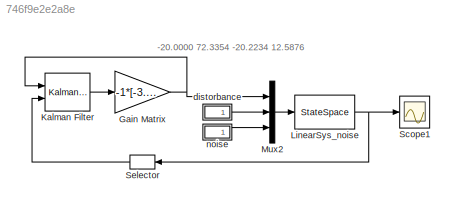
MODEL slx_746f9e2e2a8e
KIND model
CONFIG AbsTol = auto
CONFIG FixedStep = 0.01
CONFIG MaxStep = auto
CONFIG MinStep = auto
CONFIG RelTol = 1e-3
CONFIG SampleTimeConstraint = Unconstrained
CONFIG Solver = ode5
CONFIG SolverMode = Auto
CONFIG SolverName = ode5
CONFIG StartTime = 0.0
CONFIG StopTime = 10
BLOCK [Gain] Gain Matrix
  Gain = -1*[-3.1623   14.6880   -3.4728    2.7918]
  Multiplication = Matrix(K*u) (u vector)
  OutDataTypeStr = Inherit: Inherit via internal rule
  ParamDataTypeStr = Inherit: Inherit via internal rule
  SaturateOnIntegerOverflow = off
BLOCK [Reference] Kalman Filter  REF=ctrlSharedLib/Kalman Filter
  A = A
  AddEnablePort = off
  AddInputPort = on
  B = B
  C = C
  D = D
  ExternalReset = none
  G = 1
  H = 0
  InitialEstimateSource = Dialog
  ModelSource = Individual A, B, C, D matrices
  ModelSourceVariable = ss(A,B,C,D,Ts)
  N = 0
  NumberOfInputs = 1
  NumberOfOutputs = 1
  NumberOfProcessNoiseInputs = 1
  NumberOfStates = 1
  OutputEstimatedY = off
  OutputP = off
  P0 = 10
  Ports = [2, 1]
  Q = diag([0 0 0.1 0.1])
  R = 1e-04
  SourceBlock = ctrlSharedLib/Kalman Filter
  SourceType = ctrlKalmanFilter
  TimeDomain = Continuous-Time
  TimeInvariantG = on
  TimeInvariantH = on
  TimeInvariantN = on
  TimeInvariantQ = on
  TimeInvariantR = on
  Ts = -1
  UseCurrentEstimator = on
  UseGH = off
  UseK = off
  X0 = [0; 0; 0; 0]
BLOCK [StateSpace] LinearSys_noise
  A = A
  B = BF
  C = C
  D = DF
  Ports = [1, 1]
  X0 = [0; 0; 0; 0]
BLOCK [Mux] Mux2
  DisplayOption = bar
  Inputs = 3
  Ports = [3, 1]
BLOCK [Scope] Scope1
  Floating = off
  LimitDataPoints = off
  NumInputPorts = 1
  Ports = [1]
  SaveName = linSysNoise
  SaveToWorkspace = on
  ShowLegends = on
  YMax = 0.328423
  YMin = -0.19291
BLOCK [Selector] Selector
  Indices = [1]
  InputPortWidth = 4
  Ports = [1, 1]
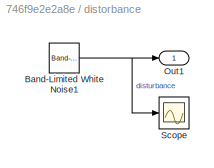
BLOCK [SubSystem] distorbance
  Ports = [0, 1]
  RequestExecContextInheritance = off
BLOCK [Reference] distorbance/Band-Limited White Noise1  REF=simulink/Sources/Band-Limited
White Noise
  Cov = [0 0 0.1*0.01 0.1*0.01]
  Ports = [0, 1]
  SourceBlock = simulink/Sources/Band-Limited\nWhite Noise
  SourceType = Band-Limited White Noise.
  Ts = 0.01
  VectorParams1D = on
  seed = [23341]
BLOCK [Outport] distorbance/Out1
  IconDisplay = Port number
BLOCK [Scope] distorbance/Scope
  Floating = off
  LimitDataPoints = off
  NumInputPorts = 1
  Ports = [1]
  SaveName = noise
  SaveToWorkspace = on
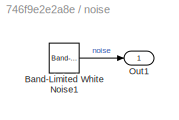
BLOCK [SubSystem] noise
  Ports = [0, 1]
  RequestExecContextInheritance = off
BLOCK [Reference] noise/Band-Limited White Noise1  REF=simulink/Sources/Band-Limited
White Noise
  Cov = [1e-4*0.01]
  Ports = [0, 1]
  SourceBlock = simulink/Sources/Band-Limited\nWhite Noise
  SourceType = Band-Limited White Noise.
  Ts = 0.01
  VectorParams1D = on
  seed = [23341]
BLOCK [Outport] noise/Out1
  IconDisplay = Port number
ANNOTATION (root): -20.0000 72.3354 -20.2234 12.5876
NET Gain Matrix:1 -> Kalman Filter:1, Mux2:1
LINE Kalman Filter:1 -> Gain Matrix:1
NET LinearSys_noise:1 -> Scope1:1, Selector:1
LINE Mux2:1 -> LinearSys_noise:1
LINE Selector:1 -> Kalman Filter:2
NET distorbance/Band-Limited White Noise1:1 -> distorbance/Out1:1, distorbance/Scope:1
LINE distorbance:1 -> Mux2:2
LINE noise/Band-Limited White Noise1:1 -> noise/Out1:1
LINE noise:1 -> Mux2:3
note: NET lines group one-source signal fan-out (src -> all destinations, sorted); 1:1 wires keep LINE
